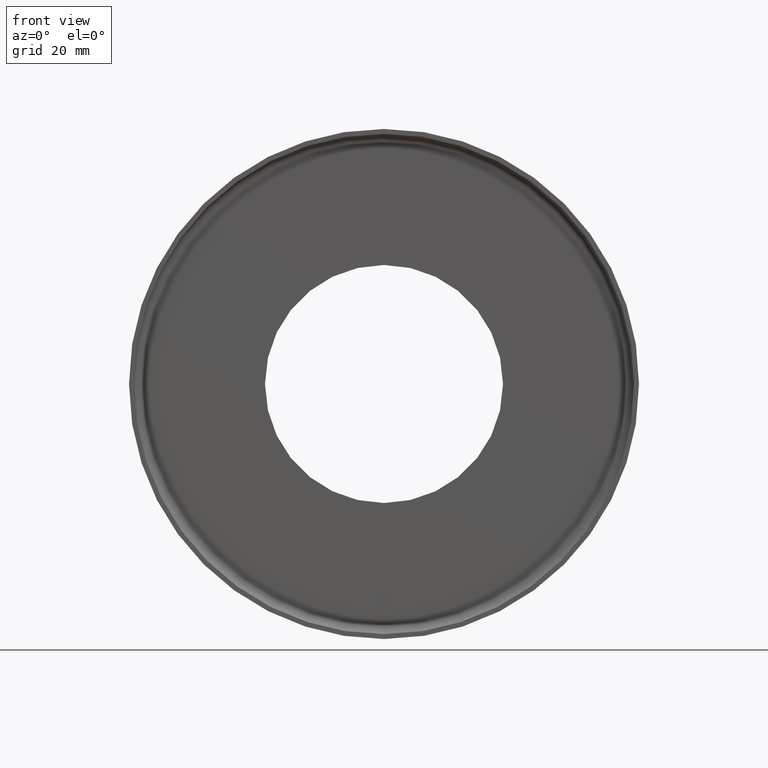
[diagram: clean part render]
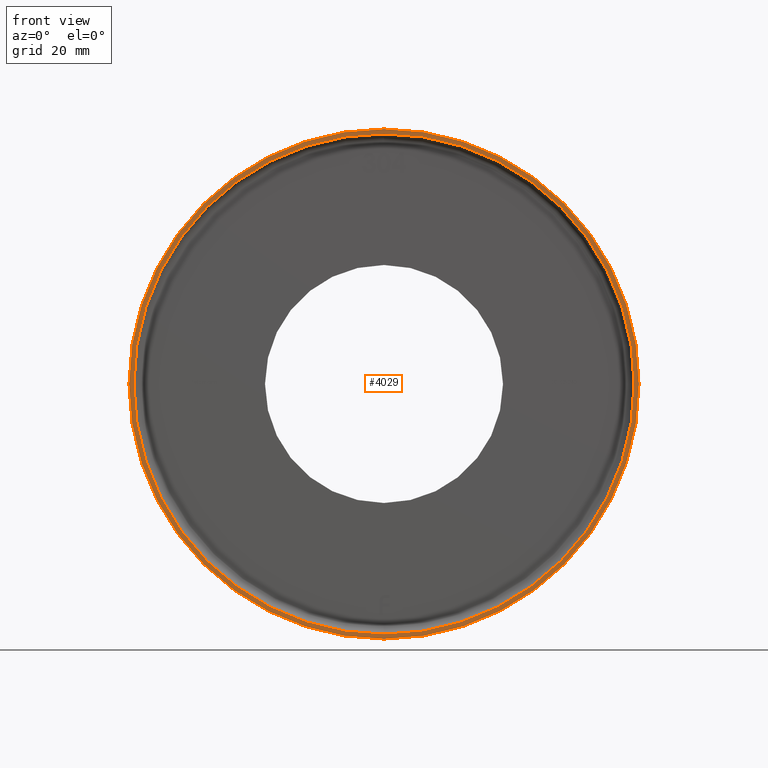
[diagram: same view with one face highlighted and labeled with its STEP entity id]
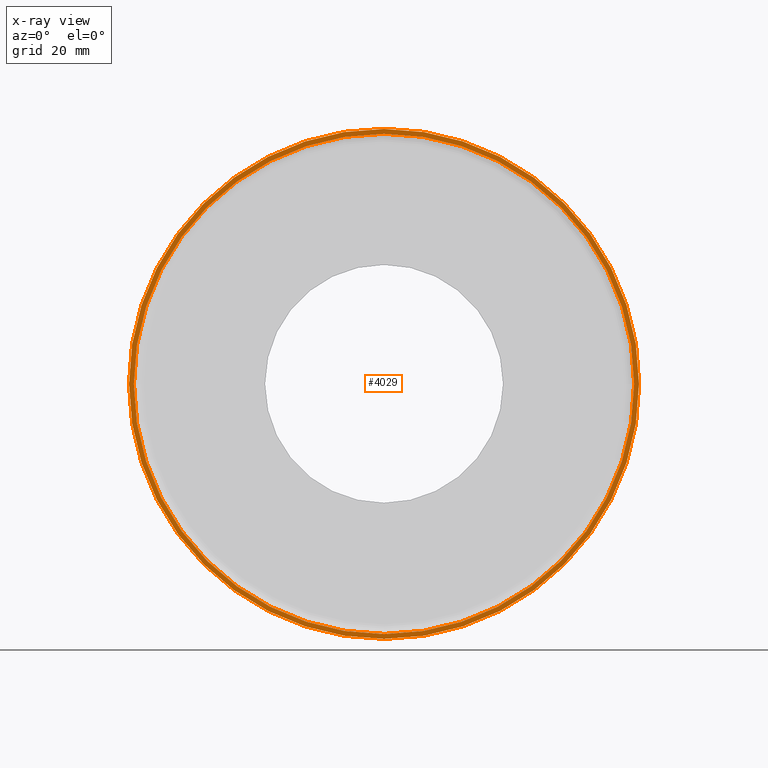
[diagram: x-ray of the same camera — body ghosted, the highlighted face saturated]
A machine part, front view. The second image highlights one B-rep face of the part: STEP entity #4029.
The next image is the same camera in x-ray: the body ghosted, the highlighted face saturated — about 0% of this face is hidden behind the body in this view.
In plain terms, the highlighted planar face has unit normal (0, -1, -0).
Its self-contained STEP definition (entity closure, byte-faithful):
#81 = CARTESIAN_POINT ( 'NONE',  ( 51.50000000000000711, -6.123233995736766036E-17, 0.000000000000000000 ) ) ;
#530 = EDGE_CURVE ( 'NONE', #11300, #10697, #1882, .T. ) ;
#778 = VERTEX_POINT ( 'NONE', #9295 ) ;
#1629 = CIRCLE ( 'NONE', #11180, 51.50000000000000711 ) ;
#1732 = ORIENTED_EDGE ( 'NONE', *, *, #10284, .T. ) ;
#1882 = CIRCLE ( 'NONE', #11371, 52.50000000000000711 ) ;
#1981 = DIRECTION ( 'NONE',  ( -0.000000000000000000, -1.000000000000000000, -0.000000000000000000 ) ) ;
#2308 = ORIENTED_EDGE ( 'NONE', *, *, #3100, .F. ) ;
#3100 = EDGE_CURVE ( 'NONE', #4986, #778, #1629, .T. ) ;
#3821 = DIRECTION ( 'NONE',  ( 0.000000000000000000, 0.000000000000000000, -1.000000000000000000 ) ) ;
#3919 = DIRECTION ( 'NONE',  ( 0.000000000000000000, 0.000000000000000000, -1.000000000000000000 ) ) ;
#4029 = ADVANCED_FACE ( 'NONE', ( #16122, #11392 ), #10278, .T. ) ;
#4309 = AXIS2_PLACEMENT_3D ( 'NONE', #5232, #13996, #3821 ) ;
#4541 = DIRECTION ( 'NONE',  ( 0.000000000000000000, 0.000000000000000000, -1.000000000000000000 ) ) ;
#4760 = DIRECTION ( 'NONE',  ( -0.000000000000000000, -1.000000000000000000, -0.000000000000000000 ) ) ;
#4986 = VERTEX_POINT ( 'NONE', #15680 ) ;
#5232 = CARTESIAN_POINT ( 'NONE',  ( 0.000000000000000000, 0.000000000000000000, 0.000000000000000000 ) ) ;
#5435 = CARTESIAN_POINT ( 'NONE',  ( 0.000000000000000000, 0.000000000000000000, -52.50000000000000711 ) ) ;
#5913 = EDGE_CURVE ( 'NONE', #778, #4986, #9224, .T. ) ;
#7992 = DIRECTION ( 'NONE',  ( -0.000000000000000000, -1.000000000000000000, -0.000000000000000000 ) ) ;
#8082 = EDGE_LOOP ( 'NONE', ( #2308, #10352 ) ) ;
#8262 = EDGE_LOOP ( 'NONE', ( #13380, #1732 ) ) ;
#9224 = CIRCLE ( 'NONE', #9650, 51.50000000000000711 ) ;
#9295 = CARTESIAN_POINT ( 'NONE',  ( 6.306931015608869596E-15, -1.224646799147353207E-16, 51.50000000000000711 ) ) ;
#9650 = AXIS2_PLACEMENT_3D ( 'NONE', #15011, #4760, #13534 ) ;
#10278 = PLANE ( 'NONE',  #13713 ) ;
#10284 = EDGE_CURVE ( 'NONE', #10697, #11300, #13831, .T. ) ;
#10352 = ORIENTED_EDGE ( 'NONE', *, *, #5913, .F. ) ;
#10460 = DIRECTION ( 'NONE',  ( 0.000000000000000000, 0.000000000000000000, -1.000000000000000000 ) ) ;
#10697 = VERTEX_POINT ( 'NONE', #13810 ) ;
#11180 = AXIS2_PLACEMENT_3D ( 'NONE', #11825, #7992, #10460 ) ;
#11300 = VERTEX_POINT ( 'NONE', #5435 ) ;
#11371 = AXIS2_PLACEMENT_3D ( 'NONE', #15793, #1981, #4541 ) ;
#11392 = FACE_BOUND ( 'NONE', #8082, .T. ) ;
#11825 = CARTESIAN_POINT ( 'NONE',  ( 0.000000000000000000, -1.224646799147353207E-16, 0.000000000000000000 ) ) ;
#13380 = ORIENTED_EDGE ( 'NONE', *, *, #530, .T. ) ;
#13534 = DIRECTION ( 'NONE',  ( 0.000000000000000000, 0.000000000000000000, -1.000000000000000000 ) ) ;
#13713 = AXIS2_PLACEMENT_3D ( 'NONE', #81, #13876, #3919 ) ;
#13810 = CARTESIAN_POINT ( 'NONE',  ( 6.429395695523604744E-15, 0.000000000000000000, 52.50000000000000711 ) ) ;
#13831 = CIRCLE ( 'NONE', #4309, 52.50000000000000711 ) ;
#13876 = DIRECTION ( 'NONE',  ( 0.000000000000000000, -1.000000000000000000, -0.000000000000000000 ) ) ;
#13996 = DIRECTION ( 'NONE',  ( -0.000000000000000000, -1.000000000000000000, -0.000000000000000000 ) ) ;
#15011 = CARTESIAN_POINT ( 'NONE',  ( 0.000000000000000000, -1.224646799147353207E-16, 0.000000000000000000 ) ) ;
#15680 = CARTESIAN_POINT ( 'NONE',  ( 0.000000000000000000, -1.224646799147353207E-16, -51.50000000000000711 ) ) ;
#15793 = CARTESIAN_POINT ( 'NONE',  ( 0.000000000000000000, 0.000000000000000000, 0.000000000000000000 ) ) ;
#16122 = FACE_OUTER_BOUND ( 'NONE', #8262, .T. ) ;